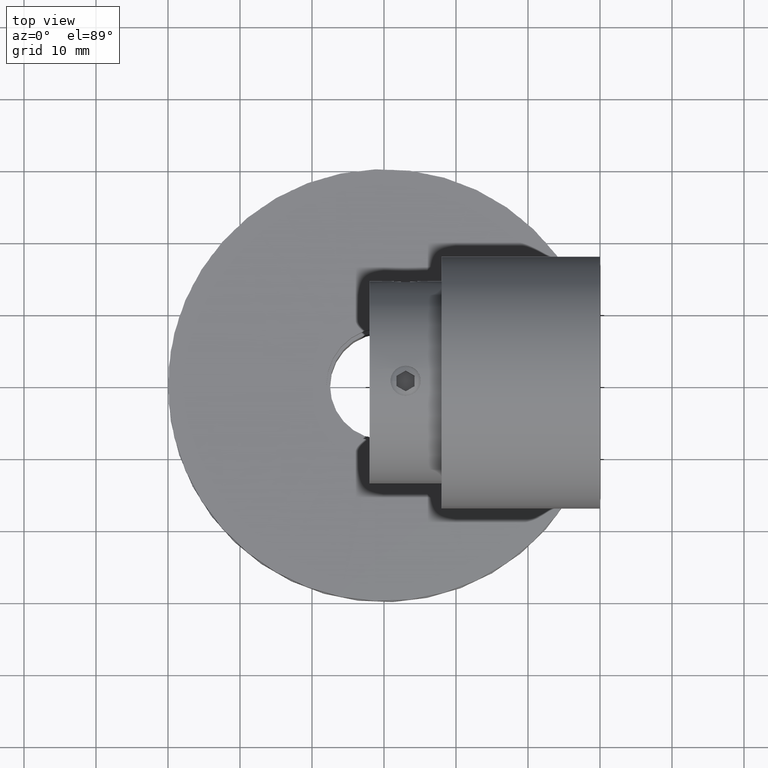
[diagram: clean part render]
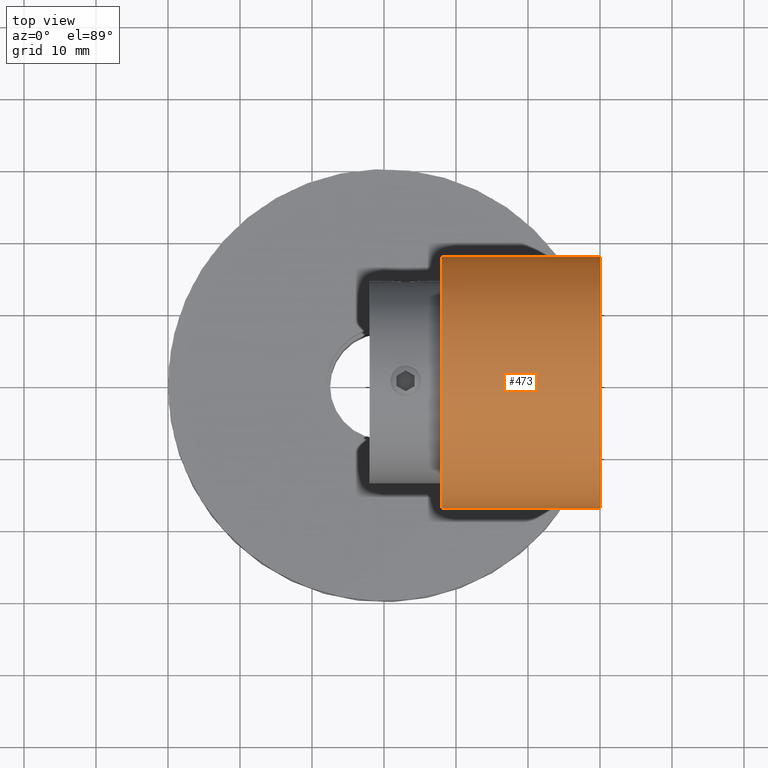
[diagram: same view with one face highlighted and labeled with its STEP entity id]
A machine part, top view. The second image highlights one B-rep face of the part: STEP entity #473.
In plain terms, the highlighted cylindrical surface (bore or boss wall) has radius 17.5 mm, axis along (-1, -0, 0).
Its self-contained STEP definition (entity closure, byte-faithful):
#473 = ADVANCED_FACE( '', ( #602, #603 ), #604, .T. );
#602 = FACE_OUTER_BOUND( '', #786, .T. );
#603 = FACE_OUTER_BOUND( '', #787, .T. );
#604 = CYLINDRICAL_SURFACE( '', #788, 17.5000000000000 );
#786 = EDGE_LOOP( '', ( #1010 ) );
#787 = EDGE_LOOP( '', ( #1011 ) );
#788 = AXIS2_PLACEMENT_3D( '', #1012, #1013, #1014 );
#1010 = ORIENTED_EDGE( '', *, *, #1358, .T. );
#1011 = ORIENTED_EDGE( '', *, *, #1359, .F. );
#1012 = CARTESIAN_POINT( '', ( 8.00000000000000, 0.000000000000000, 46.0000000000000 ) );
#1013 = DIRECTION( '', ( -1.00000000000000, -0.000000000000000, 0.000000000000000 ) );
#1014 = DIRECTION( '', ( 0.000000000000000, 1.00000000000000, 0.000000000000000 ) );
#1358 = EDGE_CURVE( '', #1498, #1498, #1499, .T. );
#1359 = EDGE_CURVE( '', #1500, #1500, #1501, .T. );
#1498 = VERTEX_POINT( '', #2146 );
#1499 = CIRCLE( '', #2147, 17.5000000000000 );
#1500 = VERTEX_POINT( '', #2148 );
#1501 = CIRCLE( '', #2149, 17.5000000000000 );
#2146 = CARTESIAN_POINT( '', ( 8.00000000000000, 17.5000000000000, 46.0000000000000 ) );
#2147 = AXIS2_PLACEMENT_3D( '', #2514, #2515, #2516 );
#2148 = CARTESIAN_POINT( '', ( 30.0000000000000, 17.5000000000000, 46.0000000000000 ) );
#2149 = AXIS2_PLACEMENT_3D( '', #2517, #2518, #2519 );
#2514 = CARTESIAN_POINT( '', ( 8.00000000000000, 0.000000000000000, 46.0000000000000 ) );
#2515 = DIRECTION( '', ( 1.00000000000000, 0.000000000000000, 0.000000000000000 ) );
#2516 = DIRECTION( '', ( 0.000000000000000, 1.00000000000000, 0.000000000000000 ) );
#2517 = CARTESIAN_POINT( '', ( 30.0000000000000, 0.000000000000000, 46.0000000000000 ) );
#2518 = DIRECTION( '', ( 1.00000000000000, 0.000000000000000, 0.000000000000000 ) );
#2519 = DIRECTION( '', ( 0.000000000000000, 1.00000000000000, 0.000000000000000 ) );